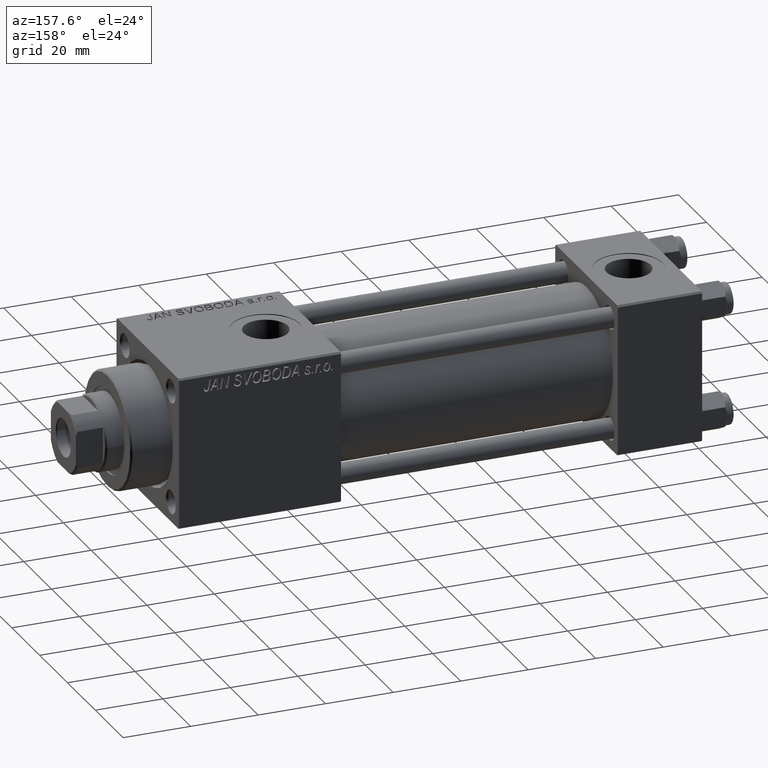
[diagram: clean part render]
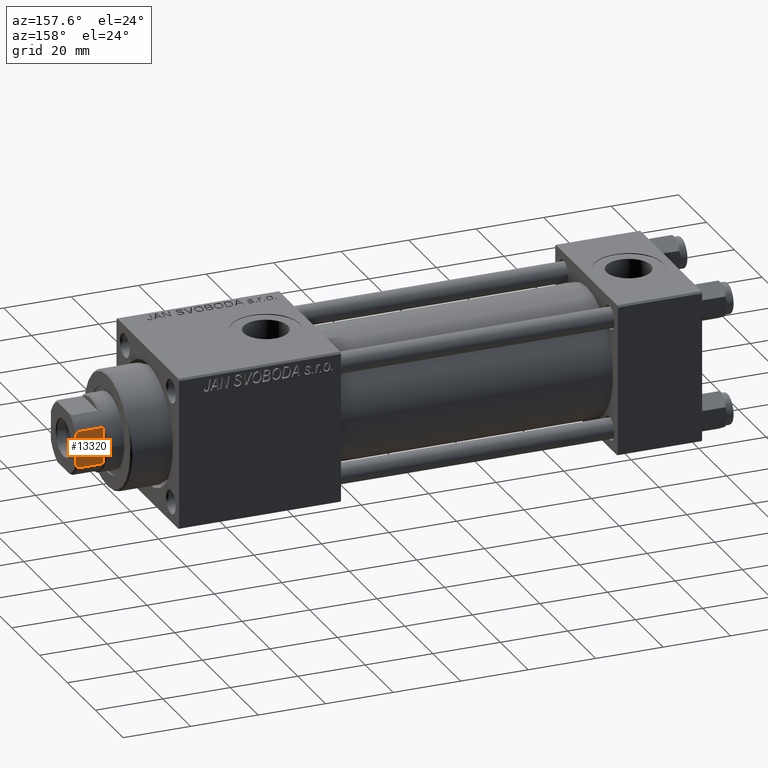
[diagram: same view with one face highlighted and labeled with its STEP entity id]
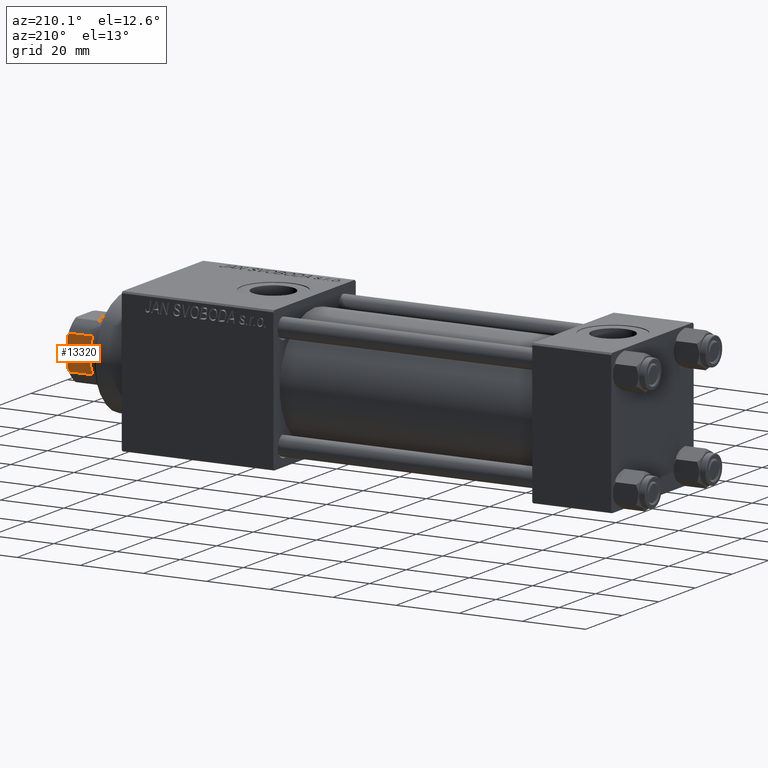
[diagram: same view with one face highlighted and labeled with its STEP entity id]
A machine part, auxiliary view. The second image highlights one B-rep face of the part: STEP entity #13320.
A second angle (auxiliary view) of the same face is appended — the face is thin or edge-on in the first view.
In plain terms, the highlighted planar face has unit normal (0, -1, -0).
Its self-contained STEP definition (entity closure, byte-faithful):
#78 = CARTESIAN_POINT ( 'NONE',  ( -9.000000000000003553, 5.063687070142449009, 154.6775166608139500 ) ) ;
#390 = ORIENTED_EDGE ( 'NONE', *, *, #33183, .T. ) ;
#1238 = VECTOR ( 'NONE', #44787, 1000.000000000000000 ) ;
#1240 = CARTESIAN_POINT ( 'NONE',  ( -9.000000000000000000, -5.408326913195987018, 154.5000000000000000 ) ) ;
#1587 = VECTOR ( 'NONE', #26268, 1000.000000000000000 ) ;
#3721 = CARTESIAN_POINT ( 'NONE',  ( -8.999999999999996447, 5.408326913195991459, 154.5000000000000568 ) ) ;
#4306 = CARTESIAN_POINT ( 'NONE',  ( -9.000000000000003553, -4.358898943540542525, 155.0000000000000284 ) ) ;
#5388 = CARTESIAN_POINT ( 'NONE',  ( -9.000000000000001776, -4.714305797500160544, 154.8450817439748732 ) ) ;
#5826 = EDGE_CURVE ( 'NONE', #16804, #7993, #21960, .T. ) ;
#6225 = CARTESIAN_POINT ( 'NONE',  ( -9.000000000000003553, 8.999999999999998224, 155.0000000000000284 ) ) ;
#6868 = DIRECTION ( 'NONE',  ( 9.637352644315595243E-17, -1.000000000000000000, 0.000000000000000000 ) ) ;
#7338 = B_SPLINE_CURVE_WITH_KNOTS ( 'NONE', 3,
 ( #23191, #34351, #78, #19374 ),
 .UNSPECIFIED., .F., .F.,
 ( 4, 4 ),
 ( 0.000000000000000000, 0.001162453897363179348 ),
 .UNSPECIFIED. ) ;
#7993 = VERTEX_POINT ( 'NONE', #3721 ) ;
#8612 = VERTEX_POINT ( 'NONE', #4306 ) ;
#8687 = AXIS2_PLACEMENT_3D ( 'NONE', #40167, #21141, #47779 ) ;
#9117 = ORIENTED_EDGE ( 'NONE', *, *, #40692, .F. ) ;
#9192 = CARTESIAN_POINT ( 'NONE',  ( -9.000000000000000000, -5.408326913195987018, 154.5000000000000000 ) ) ;
#9529 = EDGE_CURVE ( 'NONE', #37312, #31505, #31728, .T. ) ;
#13320 = ADVANCED_FACE ( 'NONE', ( #24945 ), #40910, .F. ) ;
#16657 = ORIENTED_EDGE ( 'NONE', *, *, #41887, .T. ) ;
#16804 = VERTEX_POINT ( 'NONE', #25351 ) ;
#19374 = CARTESIAN_POINT ( 'NONE',  ( -8.999999999999996447, 5.408326913195991459, 154.5000000000000568 ) ) ;
#21053 = VECTOR ( 'NONE', #27408, 1000.000000000000000 ) ;
#21141 = DIRECTION ( 'NONE',  ( 1.000000000000000000, 9.637352644315595243E-17, -0.000000000000000000 ) ) ;
#21960 = LINE ( 'NONE', #36923, #1587 ) ;
#23191 = CARTESIAN_POINT ( 'NONE',  ( -9.000000000000003553, 4.358898943540677529, 155.0000000000000284 ) ) ;
#24362 = EDGE_LOOP ( 'NONE', ( #48052, #390, #9117, #29602, #32162, #16657 ) ) ;
#24545 = VERTEX_POINT ( 'NONE', #32636 ) ;
#24945 = FACE_OUTER_BOUND ( 'NONE', #24362, .T. ) ;
#25351 = CARTESIAN_POINT ( 'NONE',  ( -8.999999999999996447, 5.408326913195989682, 147.0000000000000000 ) ) ;
#26268 = DIRECTION ( 'NONE',  ( -0.000000000000000000, -0.000000000000000000, 1.000000000000000000 ) ) ;
#27408 = DIRECTION ( 'NONE',  ( -0.000000000000000000, -0.000000000000000000, 1.000000000000000000 ) ) ;
#29602 = ORIENTED_EDGE ( 'NONE', *, *, #34132, .T. ) ;
#31505 = VERTEX_POINT ( 'NONE', #1240 ) ;
#31728 = LINE ( 'NONE', #38124, #21053 ) ;
#31775 = VECTOR ( 'NONE', #6868, 1000.000000000000000 ) ;
#32162 = ORIENTED_EDGE ( 'NONE', *, *, #5826, .F. ) ;
#32636 = CARTESIAN_POINT ( 'NONE',  ( -9.000000000000003553, 4.358898943540677529, 155.0000000000000284 ) ) ;
#33183 = EDGE_CURVE ( 'NONE', #31505, #8612, #46696, .T. ) ;
#33764 = CARTESIAN_POINT ( 'NONE',  ( -9.000000000000003553, 8.999999999999998224, 147.0000000000000284 ) ) ;
#34132 = EDGE_CURVE ( 'NONE', #24545, #7993, #7338, .T. ) ;
#34351 = CARTESIAN_POINT ( 'NONE',  ( -9.000000000000001776, 4.714305797500254691, 154.8450817439748732 ) ) ;
#36187 = LINE ( 'NONE', #6225, #1238 ) ;
#36923 = CARTESIAN_POINT ( 'NONE',  ( -8.999999999999996447, 5.408326913195991459, -0.001000000000001000089 ) ) ;
#37312 = VERTEX_POINT ( 'NONE', #44370 ) ;
#37566 = LINE ( 'NONE', #33764, #31775 ) ;
#38124 = CARTESIAN_POINT ( 'NONE',  ( -9.000000000000000000, -5.408326913195987018, -0.001000000000001000089 ) ) ;
#40147 = CARTESIAN_POINT ( 'NONE',  ( -9.000000000000000000, -5.063687070142405489, 154.6775166608139216 ) ) ;
#40167 = CARTESIAN_POINT ( 'NONE',  ( -9.000000000000003553, 8.999999999999998224, 155.0000000000000284 ) ) ;
#40692 = EDGE_CURVE ( 'NONE', #24545, #8612, #36187, .T. ) ;
#40910 = PLANE ( 'NONE',  #8687 ) ;
#41887 = EDGE_CURVE ( 'NONE', #16804, #37312, #37566, .T. ) ;
#44370 = CARTESIAN_POINT ( 'NONE',  ( -9.000000000000000000, -5.408326913195987018, 147.0000000000000000 ) ) ;
#44787 = DIRECTION ( 'NONE',  ( 9.637352644315595243E-17, -1.000000000000000000, 0.000000000000000000 ) ) ;
#46696 = B_SPLINE_CURVE_WITH_KNOTS ( 'NONE', 3,
 ( #9192, #40147, #5388, #48749 ),
 .UNSPECIFIED., .F., .F.,
 ( 4, 4 ),
 ( 0.000000000000000000, 0.001162453897363323113 ),
 .UNSPECIFIED. ) ;
#47779 = DIRECTION ( 'NONE',  ( -9.637352644315595243E-17, 1.000000000000000000, 0.000000000000000000 ) ) ;
#48052 = ORIENTED_EDGE ( 'NONE', *, *, #9529, .T. ) ;
#48749 = CARTESIAN_POINT ( 'NONE',  ( -9.000000000000003553, -4.358898943540542525, 155.0000000000000284 ) ) ;